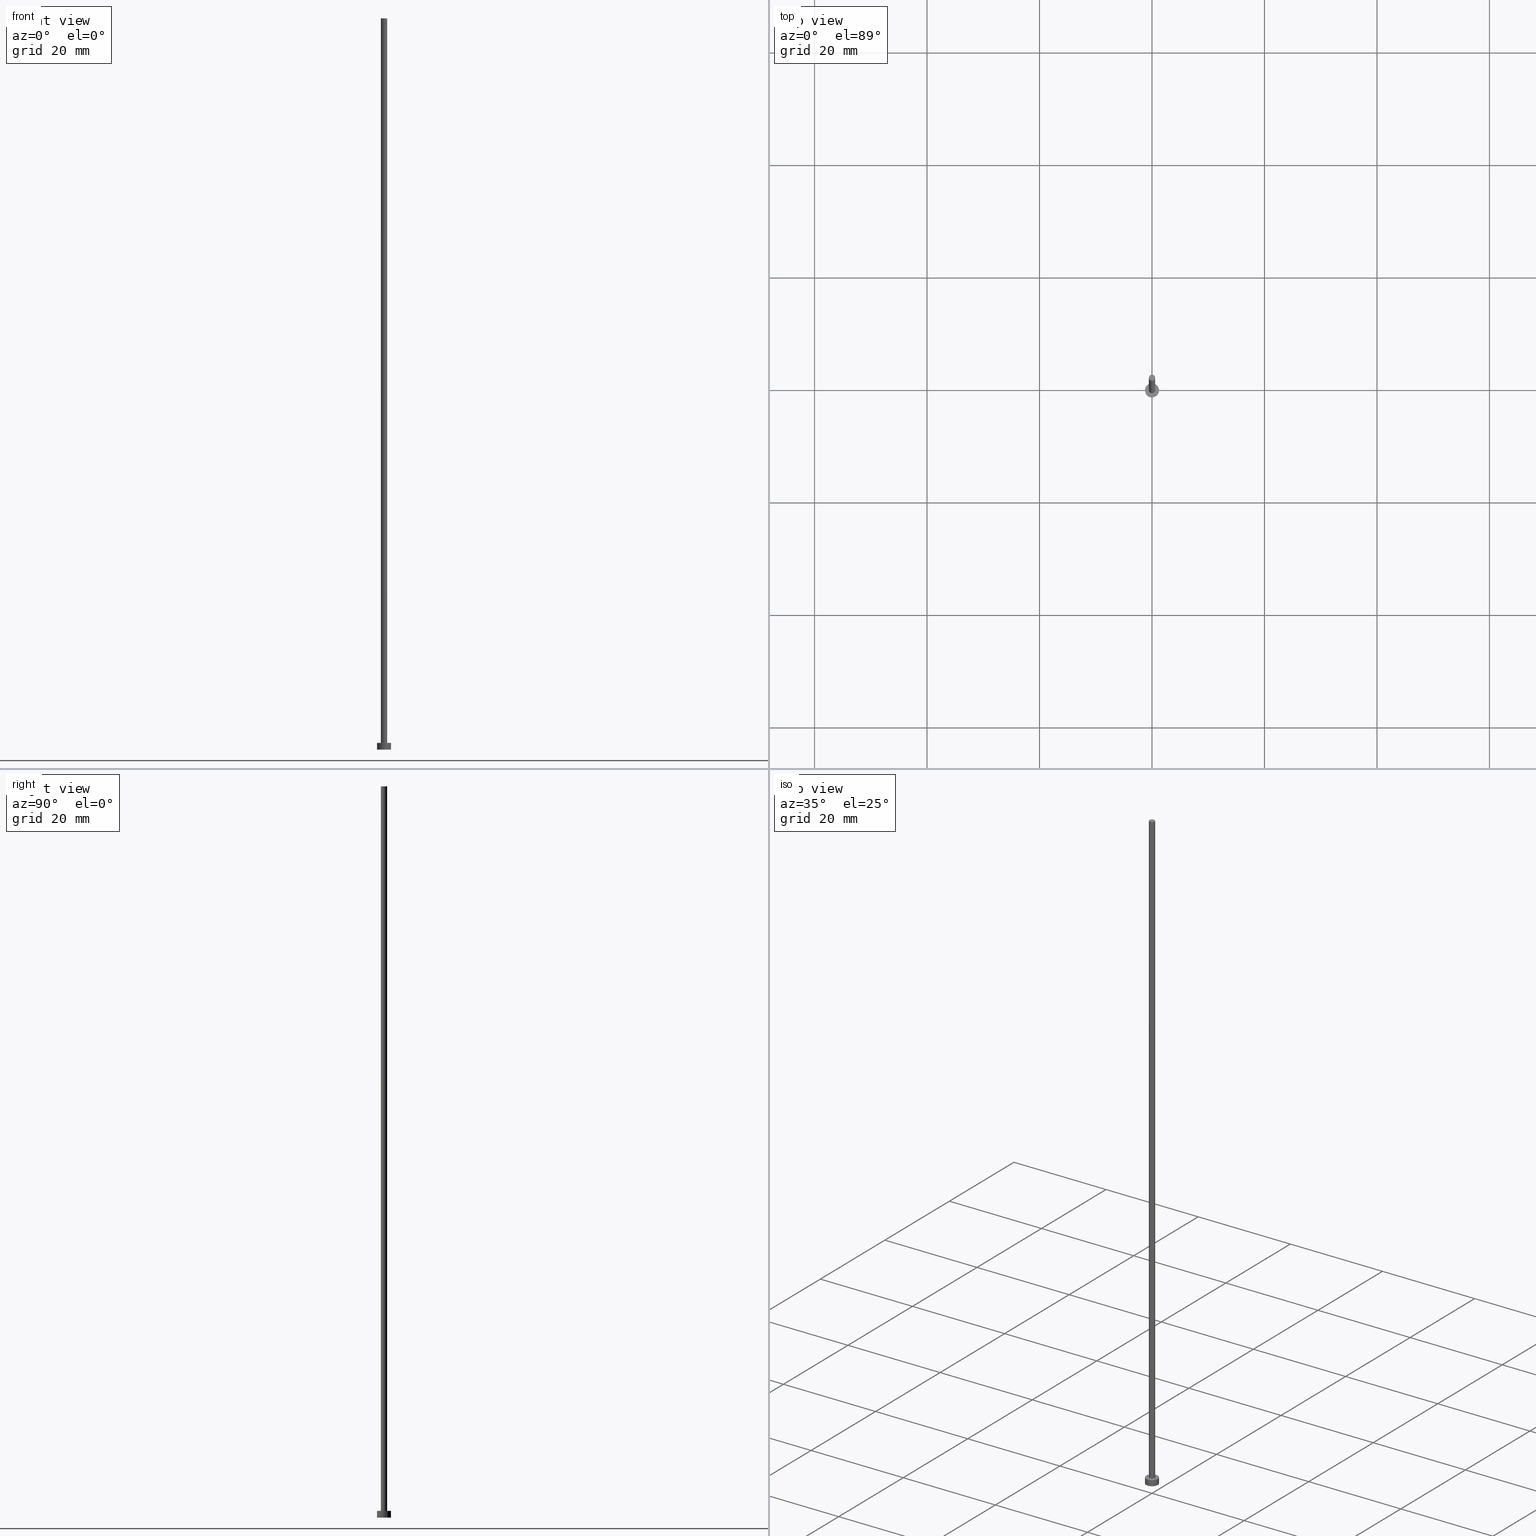
[diagram: canonical four-view strip — front | top / right | iso, engineering-drawing reading convention]
A machine part, canonical four-view strip (front | top / right | iso — engineering-drawing reading convention). The complete STEP part file that produces these views, byte-faithful:
ISO-10303-21;
HEADER;
FILE_DESCRIPTION (( 'STEP AP203' ),
    '1' );
FILE_NAME ('c7e2.STEP',
    '2023-09-06T11:55:13',
    ( '' ),
    ( '' ),
    'SwSTEP 2.0',
    'SolidWorks 2019',
    '' );
FILE_SCHEMA (( 'CONFIG_CONTROL_DESIGN' ));
ENDSEC;

DATA;
#1 = PERSON_AND_ORGANIZATION_ROLE ( 'creator' ) ;
#2 = EDGE_CURVE ( 'NONE', #8, #68, #157, .T. ) ;
#3 = AXIS2_PLACEMENT_3D ( 'NONE', #5, #213, #116 ) ;
#4 = PERSON_AND_ORGANIZATION ( #131, #34 ) ;
#5 = CARTESIAN_POINT ( 'NONE',  ( 0.000000000000000000, 0.000000000000000000, 0.000000000000000000 ) ) ;
#6 = ORIENTED_EDGE ( 'NONE', *, *, #172, .T. ) ;
#7 = CALENDAR_DATE ( 2023, 6, 9 ) ;
#8 = VERTEX_POINT ( 'NONE', #94 ) ;
#9 = DIRECTION ( 'NONE',  ( 1.000000000000000000, 0.000000000000000000, 0.000000000000000000 ) ) ;
#10 = DIRECTION ( 'NONE',  ( 1.000000000000000000, 0.000000000000000000, 0.000000000000000000 ) ) ;
#11 = PRODUCT_DEFINITION ( 'NEZN�M�', '', #55, #24 ) ;
#12 = CARTESIAN_POINT ( 'NONE',  ( -0.5500000000000000444, 0.000000000000000000, 130.0000000000000000 ) ) ;
#13 = PLANE ( 'NONE',  #197 ) ;
#14 = EDGE_CURVE ( 'NONE', #47, #29, #238, .T. ) ;
#15 = AXIS2_PLACEMENT_3D ( 'NONE', #155, #170, #226 ) ;
#16 = CYLINDRICAL_SURFACE ( 'NONE', #31, 0.5500000000000000444 ) ;
#17 = CARTESIAN_POINT ( 'NONE',  ( -1.250000000000000000, 0.000000000000000000, 1.199999999999999956 ) ) ;
#18 = APPLICATION_PROTOCOL_DEFINITION ( 'international standard', 'config_control_design', 1994, #212 ) ;
#19 =( NAMED_UNIT ( * ) SI_UNIT ( $, .STERADIAN. ) SOLID_ANGLE_UNIT ( ) );
#20 = PERSON_AND_ORGANIZATION_ROLE ( 'creator' ) ;
#21 = LOCAL_TIME ( 13, 55, 13.00000000000000000, #181 ) ;
#22 = LINE ( 'NONE', #57, #95 ) ;
#23 = LOCAL_TIME ( 13, 55, 13.00000000000000000, #59 ) ;
#24 = DESIGN_CONTEXT ( 'detailed design', #212, 'design' ) ;
#25 = ORIENTED_EDGE ( 'NONE', *, *, #208, .T. ) ;
#26 = ADVANCED_FACE ( 'NONE', ( #175 ), #16, .T. ) ;
#27 = ORIENTED_EDGE ( 'NONE', *, *, #166, .T. ) ;
#28 = CIRCLE ( 'NONE', #173, 1.250000000000000000 ) ;
#29 = VERTEX_POINT ( 'NONE', #112 ) ;
#30 = DIRECTION ( 'NONE',  ( -0.000000000000000000, -0.000000000000000000, -1.000000000000000000 ) ) ;
#31 = AXIS2_PLACEMENT_3D ( 'NONE', #229, #171, #36 ) ;
#32 = DIRECTION ( 'NONE',  ( 0.000000000000000000, 0.000000000000000000, 1.000000000000000000 ) ) ;
#33 = DIRECTION ( 'NONE',  ( -1.000000000000000000, 0.000000000000000000, 0.000000000000000000 ) ) ;
#34 = ORGANIZATION ( 'NEUR�EN�', 'NEUR�EN�', '' ) ;
#35 = PLANE ( 'NONE',  #139 ) ;
#36 = DIRECTION ( 'NONE',  ( -1.000000000000000000, 0.000000000000000000, 0.000000000000000000 ) ) ;
#37 = MECHANICAL_CONTEXT ( 'NONE', #206, 'mechanical' ) ;
#38 = DATE_AND_TIME ( #216, #129 ) ;
#39 =( LENGTH_UNIT ( ) NAMED_UNIT ( * ) SI_UNIT ( .MILLI., .METRE. ) );
#40 = DATE_AND_TIME ( #61, #21 ) ;
#41 = ORIENTED_EDGE ( 'NONE', *, *, #241, .T. ) ;
#42 = APPROVAL_DATE_TIME ( #163, #121 ) ;
#43 = EDGE_CURVE ( 'NONE', #120, #8, #191, .T. ) ;
#44 = CC_DESIGN_SECURITY_CLASSIFICATION ( #231, ( #55 ) ) ;
#45 = ORIENTED_EDGE ( 'NONE', *, *, #100, .T. ) ;
#46 = VERTEX_POINT ( 'NONE', #248 ) ;
#47 = VERTEX_POINT ( 'NONE', #12 ) ;
#48 = ORIENTED_EDGE ( 'NONE', *, *, #135, .F. ) ;
#49 = CARTESIAN_POINT ( 'NONE',  ( 0.000000000000000000, 0.000000000000000000, 130.0000000000000000 ) ) ;
#50 = CYLINDRICAL_SURFACE ( 'NONE', #98, 0.5500000000000000444 ) ;
#51 = AXIS2_PLACEMENT_3D ( 'NONE', #54, #32, #10 ) ;
#52 = LINE ( 'NONE', #91, #178 ) ;
#53 = EDGE_CURVE ( 'NONE', #168, #68, #52, .T. ) ;
#54 = CARTESIAN_POINT ( 'NONE',  ( 0.000000000000000000, 0.000000000000000000, 130.0000000000000000 ) ) ;
#55 = PRODUCT_DEFINITION_FORMATION_WITH_SPECIFIED_SOURCE ( 'LIBOVOLN�', '', #194, .NOT_KNOWN. ) ;
#56 = FACE_BOUND ( 'NONE', #86, .T. ) ;
#57 = CARTESIAN_POINT ( 'NONE',  ( -0.5500000000000000444, 0.000000000000000000, 130.0000000000000000 ) ) ;
#58 = CYLINDRICAL_SURFACE ( 'NONE', #214, 1.250000000000000000 ) ;
#59 = COORDINATED_UNIVERSAL_TIME_OFFSET ( 1, 0, .AHEAD. ) ;
#60 = LOCAL_TIME ( 13, 55, 13.00000000000000000, #67 ) ;
#61 = CALENDAR_DATE ( 2023, 6, 9 ) ;
#62 = DATE_AND_TIME ( #246, #215 ) ;
#63 = AXIS2_PLACEMENT_3D ( 'NONE', #108, #187, #9 ) ;
#64 = PERSON_AND_ORGANIZATION ( #131, #34 ) ;
#65 = MANIFOLD_SOLID_BREP ( 'P�idat vysunut�m3', #109 ) ;
#66 = EDGE_LOOP ( 'NONE', ( #164, #127, #6, #243 ) ) ;
#67 = COORDINATED_UNIVERSAL_TIME_OFFSET ( 1, 0, .AHEAD. ) ;
#68 = VERTEX_POINT ( 'NONE', #228 ) ;
#69 = DATE_TIME_ROLE ( 'classification_date' ) ;
#70 = ORIENTED_EDGE ( 'NONE', *, *, #150, .T. ) ;
#71 = CC_DESIGN_DATE_AND_TIME_ASSIGNMENT ( #40, #80, ( #11 ) ) ;
#72 = CARTESIAN_POINT ( 'NONE',  ( 0.000000000000000000, 0.000000000000000000, 1.199999999999999956 ) ) ;
#73 = CARTESIAN_POINT ( 'NONE',  ( 0.5500000000000000444, 6.735557395310442516E-17, 130.0000000000000000 ) ) ;
#74 = DIRECTION ( 'NONE',  ( -0.000000000000000000, -0.000000000000000000, -1.000000000000000000 ) ) ;
#75 = AXIS2_PLACEMENT_3D ( 'NONE', #132, #151, #90 ) ;
#76 = DIRECTION ( 'NONE',  ( 1.000000000000000000, 0.000000000000000000, 0.000000000000000000 ) ) ;
#77 = DIRECTION ( 'NONE',  ( 0.000000000000000000, 0.000000000000000000, 1.000000000000000000 ) ) ;
#78 = PERSON_AND_ORGANIZATION_ROLE ( 'design_supplier' ) ;
#79 = ADVANCED_FACE ( 'NONE', ( #130 ), #50, .T. ) ;
#80 = DATE_TIME_ROLE ( 'creation_date' ) ;
#81 =( NAMED_UNIT ( * ) PLANE_ANGLE_UNIT ( ) SI_UNIT ( $, .RADIAN. ) );
#82 = FACE_OUTER_BOUND ( 'NONE', #203, .T. ) ;
#83 = ORIENTED_EDGE ( 'NONE', *, *, #14, .T. ) ;
#84 = VECTOR ( 'NONE', #74, 1000.000000000000000 ) ;
#85 = PRODUCT_RELATED_PRODUCT_CATEGORY ( 'detail', '', ( #194 ) ) ;
#86 = EDGE_LOOP ( 'NONE', ( #128, #245 ) ) ;
#87 = APPROVAL_PERSON_ORGANIZATION ( #255, #141, #99 ) ;
#88 = ORIENTED_EDGE ( 'NONE', *, *, #166, .F. ) ;
#89 = CIRCLE ( 'NONE', #153, 0.5500000000000000444 ) ;
#90 = DIRECTION ( 'NONE',  ( 1.000000000000000000, 0.000000000000000000, 0.000000000000000000 ) ) ;
#91 = CARTESIAN_POINT ( 'NONE',  ( 1.250000000000000000, 1.530808498934191571E-16, 1.199999999999999956 ) ) ;
#92 = CARTESIAN_POINT ( 'NONE',  ( 0.000000000000000000, 0.000000000000000000, 1.199999999999999956 ) ) ;
#93 = FACE_OUTER_BOUND ( 'NONE', #221, .T. ) ;
#94 = CARTESIAN_POINT ( 'NONE',  ( -1.250000000000000000, 0.000000000000000000, 0.000000000000000000 ) ) ;
#95 = VECTOR ( 'NONE', #235, 1000.000000000000000 ) ;
#96 = APPROVAL ( #101, 'NEUR�EN�' ) ;
#97 = PERSON_AND_ORGANIZATION ( #131, #34 ) ;
#98 = AXIS2_PLACEMENT_3D ( 'NONE', #211, #188, #33 ) ;
#99 = APPROVAL_ROLE ( '' ) ;
#100 = EDGE_CURVE ( 'NONE', #29, #47, #201, .T. ) ;
#101 = APPROVAL_STATUS ( 'not_yet_approved' ) ;
#102 = APPROVAL_ROLE ( '' ) ;
#103 = APPROVAL_PERSON_ORGANIZATION ( #64, #121, #143 ) ;
#104 = ORIENTED_EDGE ( 'NONE', *, *, #14, .F. ) ;
#105 = CC_DESIGN_PERSON_AND_ORGANIZATION_ASSIGNMENT ( #199, #182, ( #194 ) ) ;
#106 = CIRCLE ( 'NONE', #250, 0.5500000000000000444 ) ;
#107 = EDGE_LOOP ( 'NONE', ( #48, #104, #41, #122 ) ) ;
#108 = CARTESIAN_POINT ( 'NONE',  ( 0.000000000000000000, 0.000000000000000000, 0.000000000000000000 ) ) ;
#109 = CLOSED_SHELL ( 'NONE', ( #79, #233, #236, #224, #115, #26, #190 ) ) ;
#110 = DIRECTION ( 'NONE',  ( 0.000000000000000000, 0.000000000000000000, 1.000000000000000000 ) ) ;
#111 = DIRECTION ( 'NONE',  ( 1.000000000000000000, 0.000000000000000000, 0.000000000000000000 ) ) ;
#112 = CARTESIAN_POINT ( 'NONE',  ( 0.5500000000000000444, 6.735557395310442516E-17, 130.0000000000000000 ) ) ;
#113 = CARTESIAN_POINT ( 'NONE',  ( 0.5500000000000000444, 6.735557395310442516E-17, 1.199999999999999956 ) ) ;
#114 = CARTESIAN_POINT ( 'NONE',  ( 0.000000000000000000, 0.000000000000000000, 1.199999999999999956 ) ) ;
#115 = ADVANCED_FACE ( 'NONE', ( #93 ), #13, .F. ) ;
#116 = DIRECTION ( 'NONE',  ( 1.000000000000000000, 0.000000000000000000, 0.000000000000000000 ) ) ;
#117 = APPROVAL_STATUS ( 'not_yet_approved' ) ;
#118 = CARTESIAN_POINT ( 'NONE',  ( 0.000000000000000000, 0.000000000000000000, 1.199999999999999956 ) ) ;
#119 = APPLICATION_PROTOCOL_DEFINITION ( 'international standard', 'config_control_design', 1994, #206 ) ;
#120 = VERTEX_POINT ( 'NONE', #252 ) ;
#121 = APPROVAL ( #183, 'NEUR�EN�' ) ;
#122 = ORIENTED_EDGE ( 'NONE', *, *, #124, .T. ) ;
#123 = ORIENTED_EDGE ( 'NONE', *, *, #43, .F. ) ;
#124 = EDGE_CURVE ( 'NONE', #46, #204, #89, .T. ) ;
#125 = UNCERTAINTY_MEASURE_WITH_UNIT (LENGTH_MEASURE( 1.000000000000000082E-05 ), #39, 'distance_accuracy_value', 'NONE');
#126 = AXIS2_PLACEMENT_3D ( 'NONE', #251, #77, #76 ) ;
#127 = ORIENTED_EDGE ( 'NONE', *, *, #135, .T. ) ;
#128 = ORIENTED_EDGE ( 'NONE', *, *, #124, .F. ) ;
#129 = LOCAL_TIME ( 13, 55, 13.00000000000000000, #180 ) ;
#130 = FACE_OUTER_BOUND ( 'NONE', #66, .T. ) ;
#131 = PERSON ( 'NEUR�EN�', 'NEUR�EN�', 'NEUR�EN�', ('NEUR�EN�'), ('NEUR�EN�'), ('NEUR�EN�') ) ;
#132 = CARTESIAN_POINT ( 'NONE',  ( 0.000000000000000000, 0.000000000000000000, 0.000000000000000000 ) ) ;
#133 = DIRECTION ( 'NONE',  ( 0.000000000000000000, 0.000000000000000000, 1.000000000000000000 ) ) ;
#134 = LINE ( 'NONE', #73, #84 ) ;
#135 = EDGE_CURVE ( 'NONE', #29, #204, #134, .T. ) ;
#136 = DIRECTION ( 'NONE',  ( -0.000000000000000000, -0.000000000000000000, -1.000000000000000000 ) ) ;
#137 = AXIS2_PLACEMENT_3D ( 'NONE', #114, #193, #149 ) ;
#138 = PERSON_AND_ORGANIZATION ( #131, #34 ) ;
#139 = AXIS2_PLACEMENT_3D ( 'NONE', #49, #133, #156 ) ;
#140 = APPROVAL_PERSON_ORGANIZATION ( #97, #96, #102 ) ;
#141 = APPROVAL ( #117, 'NEUR�EN�' ) ;
#142 = ADVANCED_BREP_SHAPE_REPRESENTATION ( 'c7e2', ( #65, #3 ), #253 ) ;
#143 = APPROVAL_ROLE ( '' ) ;
#144 = ORIENTED_EDGE ( 'NONE', *, *, #43, .T. ) ;
#145 = AXIS2_PLACEMENT_3D ( 'NONE', #118, #158, #160 ) ;
#146 = COORDINATED_UNIVERSAL_TIME_OFFSET ( 1, 0, .AHEAD. ) ;
#147 = ORIENTED_EDGE ( 'NONE', *, *, #2, .F. ) ;
#148 = ORIENTED_EDGE ( 'NONE', *, *, #53, .T. ) ;
#149 = DIRECTION ( 'NONE',  ( 1.000000000000000000, 0.000000000000000000, -0.000000000000000000 ) ) ;
#150 = EDGE_CURVE ( 'NONE', #168, #120, #184, .T. ) ;
#151 = DIRECTION ( 'NONE',  ( 0.000000000000000000, 0.000000000000000000, 1.000000000000000000 ) ) ;
#152 = CC_DESIGN_PERSON_AND_ORGANIZATION_ASSIGNMENT ( #242, #185, ( #231 ) ) ;
#153 = AXIS2_PLACEMENT_3D ( 'NONE', #92, #205, #249 ) ;
#154 = FACE_OUTER_BOUND ( 'NONE', #218, .T. ) ;
#155 = CARTESIAN_POINT ( 'NONE',  ( 0.000000000000000000, 0.000000000000000000, 130.0000000000000000 ) ) ;
#156 = DIRECTION ( 'NONE',  ( 1.000000000000000000, 0.000000000000000000, -0.000000000000000000 ) ) ;
#157 = CIRCLE ( 'NONE', #63, 1.250000000000000000 ) ;
#158 = DIRECTION ( 'NONE',  ( -0.000000000000000000, -0.000000000000000000, -1.000000000000000000 ) ) ;
#159 = CARTESIAN_POINT ( 'NONE',  ( 0.000000000000000000, 0.000000000000000000, 1.199999999999999956 ) ) ;
#160 = DIRECTION ( 'NONE',  ( -1.000000000000000000, 0.000000000000000000, 0.000000000000000000 ) ) ;
#161 = DATE_AND_TIME ( #177, #23 ) ;
#162 = CC_DESIGN_PERSON_AND_ORGANIZATION_ASSIGNMENT ( #138, #1, ( #11 ) ) ;
#163 = DATE_AND_TIME ( #7, #60 ) ;
#164 = ORIENTED_EDGE ( 'NONE', *, *, #100, .F. ) ;
#165 = VECTOR ( 'NONE', #136, 1000.000000000000000 ) ;
#166 = EDGE_CURVE ( 'NONE', #68, #8, #247, .T. ) ;
#167 = ORIENTED_EDGE ( 'NONE', *, *, #208, .F. ) ;
#168 = VERTEX_POINT ( 'NONE', #210 ) ;
#169 = EDGE_LOOP ( 'NONE', ( #219, #148, #27, #123 ) ) ;
#170 = DIRECTION ( 'NONE',  ( 0.000000000000000000, 0.000000000000000000, 1.000000000000000000 ) ) ;
#171 = DIRECTION ( 'NONE',  ( -0.000000000000000000, -0.000000000000000000, -1.000000000000000000 ) ) ;
#172 = EDGE_CURVE ( 'NONE', #204, #46, #106, .T. ) ;
#173 = AXIS2_PLACEMENT_3D ( 'NONE', #72, #192, #232 ) ;
#174 = DIRECTION ( 'NONE',  ( 1.000000000000000000, 0.000000000000000000, -0.000000000000000000 ) ) ;
#175 = FACE_OUTER_BOUND ( 'NONE', #107, .T. ) ;
#176 = CARTESIAN_POINT ( 'NONE',  ( 0.000000000000000000, 0.000000000000000000, 0.000000000000000000 ) ) ;
#177 = CALENDAR_DATE ( 2023, 6, 9 ) ;
#178 = VECTOR ( 'NONE', #30, 1000.000000000000000 ) ;
#179 = CC_DESIGN_DATE_AND_TIME_ASSIGNMENT ( #62, #69, ( #231 ) ) ;
#180 = COORDINATED_UNIVERSAL_TIME_OFFSET ( 1, 0, .AHEAD. ) ;
#181 = COORDINATED_UNIVERSAL_TIME_OFFSET ( 1, 0, .AHEAD. ) ;
#182 = PERSON_AND_ORGANIZATION_ROLE ( 'design_owner' ) ;
#183 = APPROVAL_STATUS ( 'not_yet_approved' ) ;
#184 = CIRCLE ( 'NONE', #126, 1.250000000000000000 ) ;
#185 = PERSON_AND_ORGANIZATION_ROLE ( 'classification_officer' ) ;
#186 = CC_DESIGN_APPROVAL ( #96, ( #11 ) ) ;
#187 = DIRECTION ( 'NONE',  ( 0.000000000000000000, 0.000000000000000000, 1.000000000000000000 ) ) ;
#188 = DIRECTION ( 'NONE',  ( -0.000000000000000000, -0.000000000000000000, -1.000000000000000000 ) ) ;
#189 = PLANE ( 'NONE',  #137 ) ;
#190 = ADVANCED_FACE ( 'NONE', ( #230 ), #35, .T. ) ;
#191 = LINE ( 'NONE', #17, #165 ) ;
#192 = DIRECTION ( 'NONE',  ( 0.000000000000000000, 0.000000000000000000, 1.000000000000000000 ) ) ;
#193 = DIRECTION ( 'NONE',  ( 0.000000000000000000, 0.000000000000000000, 1.000000000000000000 ) ) ;
#194 = PRODUCT ( 'c7e2', 'c7e2', '', ( #37 ) ) ;
#195 = CC_DESIGN_PERSON_AND_ORGANIZATION_ASSIGNMENT ( #200, #20, ( #55 ) ) ;
#196 = DIRECTION ( 'NONE',  ( -1.000000000000000000, 0.000000000000000000, 0.000000000000000000 ) ) ;
#197 = AXIS2_PLACEMENT_3D ( 'NONE', #176, #209, #174 ) ;
#198 = APPROVAL_DATE_TIME ( #38, #141 ) ;
#199 = PERSON_AND_ORGANIZATION ( #131, #34 ) ;
#200 = PERSON_AND_ORGANIZATION ( #131, #34 ) ;
#201 = CIRCLE ( 'NONE', #51, 0.5500000000000000444 ) ;
#202 = ORIENTED_EDGE ( 'NONE', *, *, #53, .F. ) ;
#203 = EDGE_LOOP ( 'NONE', ( #202, #167, #144, #225 ) ) ;
#204 = VERTEX_POINT ( 'NONE', #113 ) ;
#205 = DIRECTION ( 'NONE',  ( 0.000000000000000000, 0.000000000000000000, 1.000000000000000000 ) ) ;
#206 = APPLICATION_CONTEXT ( 'configuration controlled 3d designs of mechanical parts and assemblies' ) ;
#207 = CARTESIAN_POINT ( 'NONE',  ( 0.000000000000000000, 0.000000000000000000, 1.199999999999999956 ) ) ;
#208 = EDGE_CURVE ( 'NONE', #120, #168, #28, .T. ) ;
#209 = DIRECTION ( 'NONE',  ( 0.000000000000000000, 0.000000000000000000, 1.000000000000000000 ) ) ;
#210 = CARTESIAN_POINT ( 'NONE',  ( 1.250000000000000000, 1.530808498934191571E-16, 1.199999999999999956 ) ) ;
#211 = CARTESIAN_POINT ( 'NONE',  ( 0.000000000000000000, 0.000000000000000000, 130.0000000000000000 ) ) ;
#212 = APPLICATION_CONTEXT ( 'configuration controlled 3d designs of mechanical parts and assemblies' ) ;
#213 = DIRECTION ( 'NONE',  ( 0.000000000000000000, 0.000000000000000000, 1.000000000000000000 ) ) ;
#214 = AXIS2_PLACEMENT_3D ( 'NONE', #159, #217, #196 ) ;
#215 = LOCAL_TIME ( 13, 55, 13.00000000000000000, #146 ) ;
#216 = CALENDAR_DATE ( 2023, 6, 9 ) ;
#217 = DIRECTION ( 'NONE',  ( -0.000000000000000000, -0.000000000000000000, -1.000000000000000000 ) ) ;
#218 = EDGE_LOOP ( 'NONE', ( #25, #70 ) ) ;
#219 = ORIENTED_EDGE ( 'NONE', *, *, #150, .F. ) ;
#220 = CC_DESIGN_PERSON_AND_ORGANIZATION_ASSIGNMENT ( #4, #78, ( #55 ) ) ;
#221 = EDGE_LOOP ( 'NONE', ( #147, #88 ) ) ;
#222 = SHAPE_DEFINITION_REPRESENTATION ( #254, #142 ) ;
#223 = EDGE_LOOP ( 'NONE', ( #83, #45 ) ) ;
#224 = ADVANCED_FACE ( 'NONE', ( #56, #154 ), #189, .T. ) ;
#225 = ORIENTED_EDGE ( 'NONE', *, *, #2, .T. ) ;
#226 = DIRECTION ( 'NONE',  ( 1.000000000000000000, 0.000000000000000000, 0.000000000000000000 ) ) ;
#227 = CC_DESIGN_APPROVAL ( #141, ( #55 ) ) ;
#228 = CARTESIAN_POINT ( 'NONE',  ( 1.250000000000000000, 1.530808498934191571E-16, 0.000000000000000000 ) ) ;
#229 = CARTESIAN_POINT ( 'NONE',  ( 0.000000000000000000, 0.000000000000000000, 130.0000000000000000 ) ) ;
#230 = FACE_OUTER_BOUND ( 'NONE', #223, .T. ) ;
#231 = SECURITY_CLASSIFICATION ( '', '', #244 ) ;
#232 = DIRECTION ( 'NONE',  ( 1.000000000000000000, 0.000000000000000000, 0.000000000000000000 ) ) ;
#233 = ADVANCED_FACE ( 'NONE', ( #234 ), #58, .T. ) ;
#234 = FACE_OUTER_BOUND ( 'NONE', #169, .T. ) ;
#235 = DIRECTION ( 'NONE',  ( -0.000000000000000000, -0.000000000000000000, -1.000000000000000000 ) ) ;
#236 = ADVANCED_FACE ( 'NONE', ( #82 ), #237, .T. ) ;
#237 = CYLINDRICAL_SURFACE ( 'NONE', #145, 1.250000000000000000 ) ;
#238 = CIRCLE ( 'NONE', #15, 0.5500000000000000444 ) ;
#239 = APPROVAL_DATE_TIME ( #161, #96 ) ;
#240 = CC_DESIGN_APPROVAL ( #121, ( #231 ) ) ;
#241 = EDGE_CURVE ( 'NONE', #47, #46, #22, .T. ) ;
#242 = PERSON_AND_ORGANIZATION ( #131, #34 ) ;
#243 = ORIENTED_EDGE ( 'NONE', *, *, #241, .F. ) ;
#244 = SECURITY_CLASSIFICATION_LEVEL ( 'unclassified' ) ;
#245 = ORIENTED_EDGE ( 'NONE', *, *, #172, .F. ) ;
#246 = CALENDAR_DATE ( 2023, 6, 9 ) ;
#247 = CIRCLE ( 'NONE', #75, 1.250000000000000000 ) ;
#248 = CARTESIAN_POINT ( 'NONE',  ( -0.5500000000000000444, 0.000000000000000000, 1.199999999999999956 ) ) ;
#249 = DIRECTION ( 'NONE',  ( 1.000000000000000000, 0.000000000000000000, 0.000000000000000000 ) ) ;
#250 = AXIS2_PLACEMENT_3D ( 'NONE', #207, #110, #111 ) ;
#251 = CARTESIAN_POINT ( 'NONE',  ( 0.000000000000000000, 0.000000000000000000, 1.199999999999999956 ) ) ;
#252 = CARTESIAN_POINT ( 'NONE',  ( -1.250000000000000000, 0.000000000000000000, 1.199999999999999956 ) ) ;
#253 =( GEOMETRIC_REPRESENTATION_CONTEXT ( 3 ) GLOBAL_UNCERTAINTY_ASSIGNED_CONTEXT ( ( #125 ) ) GLOBAL_UNIT_ASSIGNED_CONTEXT ( ( #39, #81, #19 ) ) REPRESENTATION_CONTEXT ( 'NONE', 'WORKASPACE' ) );
#254 = PRODUCT_DEFINITION_SHAPE ( 'NONE', 'NONE',  #11 ) ;
#255 = PERSON_AND_ORGANIZATION ( #131, #34 ) ;
ENDSEC;
END-ISO-10303-21;
